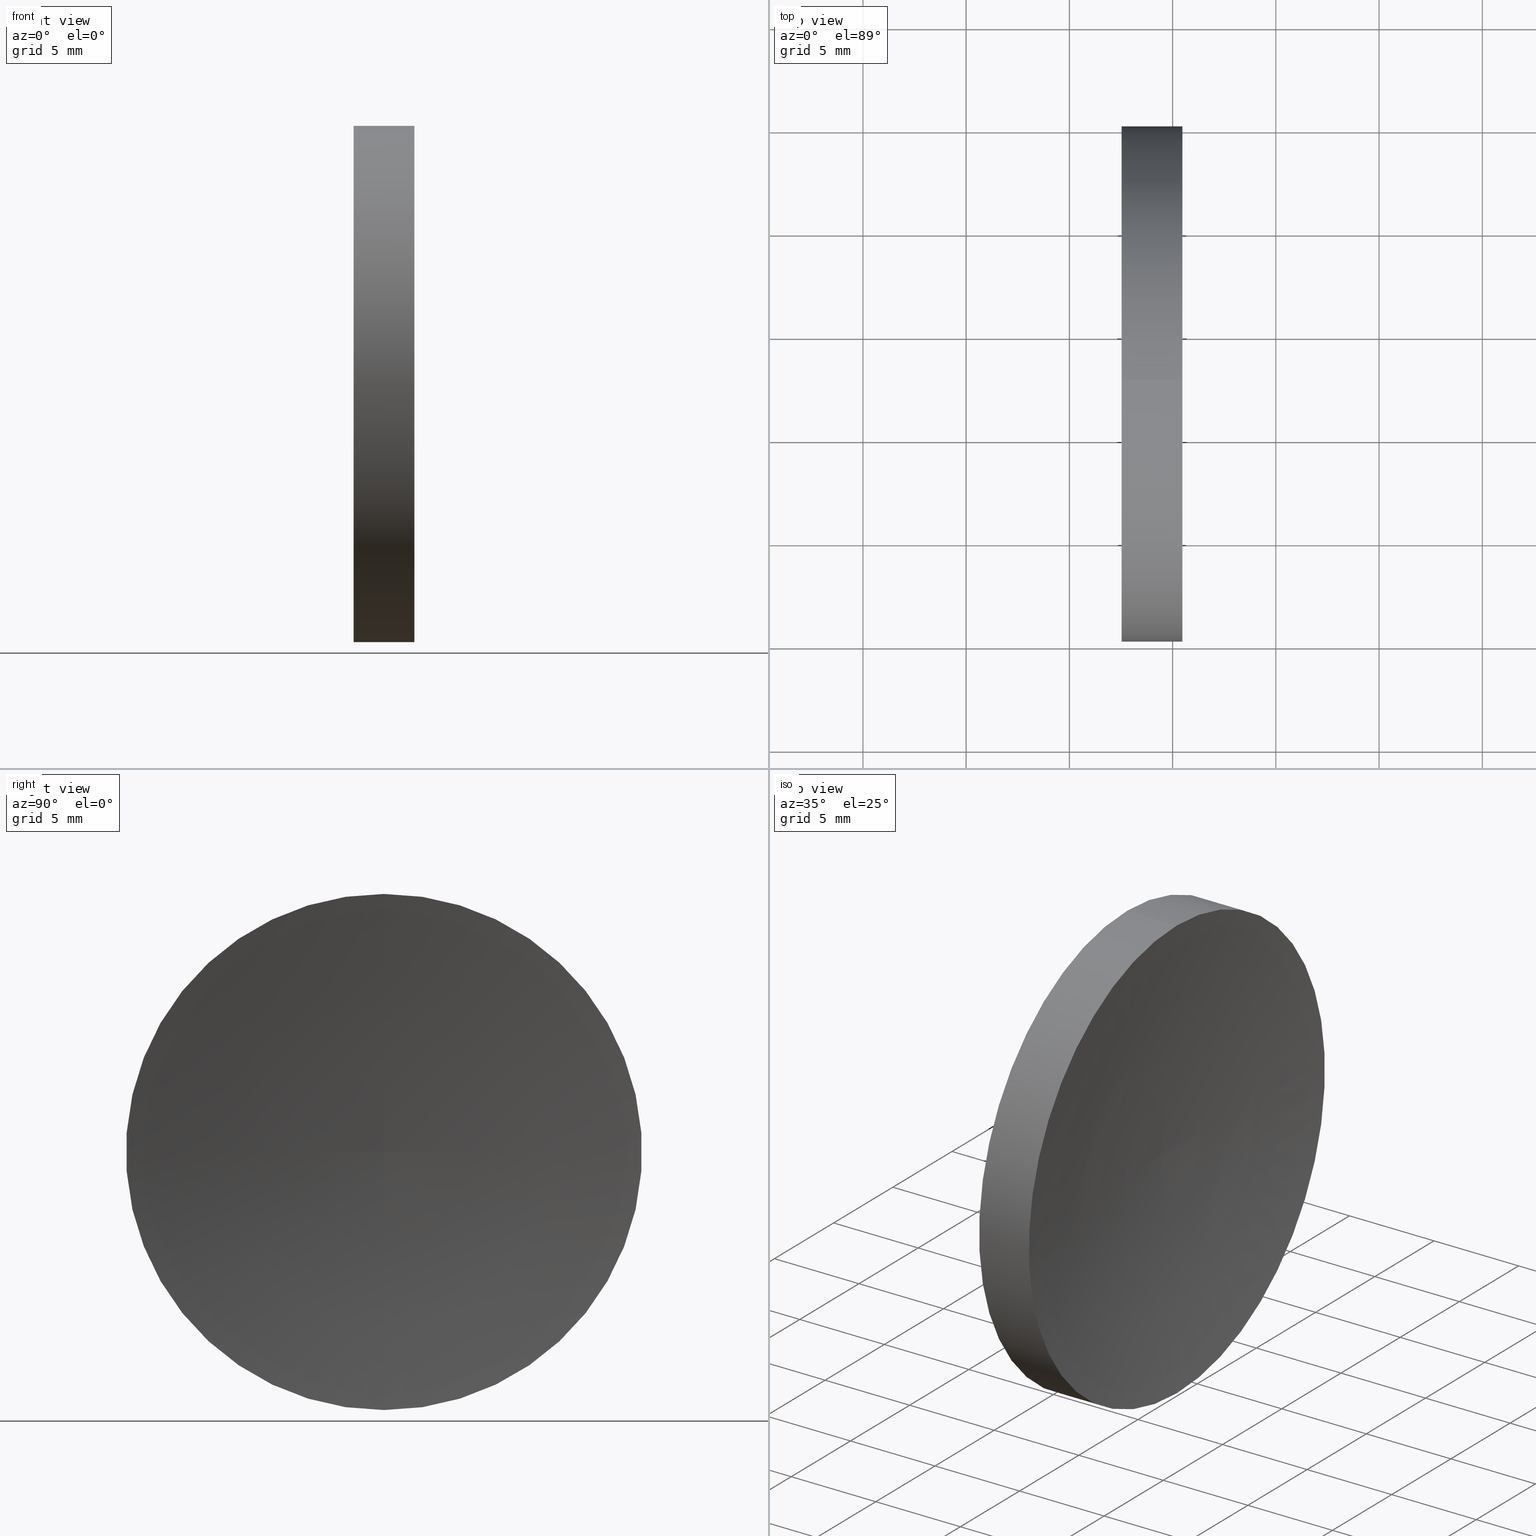
[diagram: canonical four-view strip — front | top / right | iso, engineering-drawing reading convention]
A machine part, canonical four-view strip (front | top / right | iso — engineering-drawing reading convention). The complete STEP part file that produces these views, byte-faithful:
ISO-10303-21;
HEADER;
FILE_DESCRIPTION (( 'STEP AP214' ),
    '1' );
FILE_NAME ('120037.STEP',
    '2019-06-17T05:37:55',
    ( '' ),
    ( '' ),
    'SwSTEP 2.0',
    'SolidWorks 2016',
    '' );
FILE_SCHEMA (( 'AUTOMOTIVE_DESIGN' ));
ENDSEC;

DATA;
#1 = DIRECTION ( 'NONE',  ( 0.0000000000000000000, 0.0000000000000000000, -1.000000000000000000 ) ) ;
#2 = CIRCLE ( 'NONE', #104, 12.49999999999999600 ) ;
#3 = SURFACE_STYLE_USAGE ( .BOTH. , #54 ) ;
#4 = PRESENTATION_STYLE_ASSIGNMENT (( #35 ) ) ;
#5 = FACE_OUTER_BOUND ( 'NONE', #84, .T. ) ;
#6 = EDGE_CURVE ( 'NONE', #46, #90, #107, .T. ) ;
#7 = DIRECTION ( 'NONE',  ( -1.000000000000000000, -0.0000000000000000000, -0.0000000000000000000 ) ) ;
#8 = CARTESIAN_POINT ( 'NONE',  ( 142.1522996457801800, 32.61076812922678400, 0.0000000000000000000 ) ) ;
#9 = DIRECTION ( 'NONE',  ( -1.000000000000000000, -0.0000000000000000000, -0.0000000000000000000 ) ) ;
#10 = ORIENTED_EDGE ( 'NONE', *, *, #64, .T. ) ;
#11 = ADVANCED_BREP_SHAPE_REPRESENTATION ( '120037', ( #57, #151 ), #144 ) ;
#12 = DIRECTION ( 'NONE',  ( 0.0000000000000000000, 0.0000000000000000000, 1.000000000000000000 ) ) ;
#13 = CARTESIAN_POINT ( 'NONE',  ( 0.0000000000000000000, 0.0000000000000000000, 0.0000000000000000000 ) ) ;
#14 = PRODUCT_DEFINITION_SHAPE ( 'NONE', 'NONE',  #39 ) ;
#15 =( NAMED_UNIT ( * ) SI_UNIT ( $, .STERADIAN. ) SOLID_ANGLE_UNIT ( ) );
#16 = DIRECTION ( 'NONE',  ( -1.000000000000000000, -0.0000000000000000000, -0.0000000000000000000 ) ) ;
#17 = EDGE_LOOP ( 'NONE', ( #71, #150, #112 ) ) ;
#18 = LINE ( 'NONE', #137, #149 ) ;
#19 = ORIENTED_EDGE ( 'NONE', *, *, #51, .T. ) ;
#20 = ADVANCED_FACE ( 'NONE', ( #5 ), #139, .F. ) ;
#21 = DIRECTION ( 'NONE',  ( 0.0000000000000000000, 0.0000000000000000000, 1.000000000000000000 ) ) ;
#22 = DIRECTION ( 'NONE',  ( -1.000000000000000000, -0.0000000000000000000, -0.0000000000000000000 ) ) ;
#23 = ORIENTED_EDGE ( 'NONE', *, *, #6, .F. ) ;
#24 =( GEOMETRIC_REPRESENTATION_CONTEXT ( 3 ) GLOBAL_UNCERTAINTY_ASSIGNED_CONTEXT ( ( #37 ) ) GLOBAL_UNIT_ASSIGNED_CONTEXT ( ( #143, #105, #15 ) ) REPRESENTATION_CONTEXT ( 'NONE', 'WORKASPACE' ) );
#25 = DIRECTION ( 'NONE',  ( -1.000000000000000000, -0.0000000000000000000, -0.0000000000000000000 ) ) ;
#26 = CARTESIAN_POINT ( 'NONE',  ( 56.10091507999716500, 32.61076812922678400, 0.0000000000000000000 ) ) ;
#27 = CLOSED_SHELL ( 'NONE', ( #152, #135, #20, #81, #30 ) ) ;
#28 = DIRECTION ( 'NONE',  ( -1.000000000000000000, -0.0000000000000000000, -0.0000000000000000000 ) ) ;
#29 = FACE_OUTER_BOUND ( 'NONE', #53, .T. ) ;
#30 = ADVANCED_FACE ( 'NONE', ( #36 ), #109, .F. ) ;
#31 = EDGE_CURVE ( 'NONE', #46, #163, #2, .T. ) ;
#32 = MECHANICAL_DESIGN_GEOMETRIC_PRESENTATION_REPRESENTATION (  '', ( #156 ), #24 ) ;
#33 = CARTESIAN_POINT ( 'NONE',  ( 56.10091507999716500, 32.61076812922678400, -12.49999999999999600 ) ) ;
#34 = CARTESIAN_POINT ( 'NONE',  ( 142.1522996457801800, 32.61076812922678400, -0.07861990398175949800 ) ) ;
#35 = SURFACE_STYLE_USAGE ( .BOTH. , #91 ) ;
#36 = FACE_OUTER_BOUND ( 'NONE', #145, .T. ) ;
#37 = UNCERTAINTY_MEASURE_WITH_UNIT (LENGTH_MEASURE( 1.000000000000000100E-005 ), #143, 'distance_accuracy_value', 'NONE');
#38 = CARTESIAN_POINT ( 'NONE',  ( 60.47137337464728500, 32.61076812922678400, 0.0000000000000000000 ) ) ;
#39 = PRODUCT_DEFINITION ( 'δ֪', '', #78, #96 ) ;
#40 = DIRECTION ( 'NONE',  ( 0.0000000000000000000, -1.000000000000000000, 0.0000000000000000000 ) ) ;
#41 = AXIS2_PLACEMENT_3D ( 'NONE', #117, #40, #1 ) ;
#42 = CARTESIAN_POINT ( 'NONE',  ( 57.53233705252611700, 32.61076812922678400, -12.49999999999999600 ) ) ;
#43 = APPLICATION_PROTOCOL_DEFINITION ( 'draft international standard', 'automotive_design', 1998, #116 ) ;
#44 = CARTESIAN_POINT ( 'NONE',  ( 57.53233705252611700, 32.61076812922678400, 0.0000000000000000000 ) ) ;
#45 = EDGE_CURVE ( 'NONE', #46, #141, #157, .T. ) ;
#46 = VERTEX_POINT ( 'NONE', #63 ) ;
#47 =( NAMED_UNIT ( * ) PLANE_ANGLE_UNIT ( ) SI_UNIT ( $, .RADIAN. ) );
#48 = CIRCLE ( 'NONE', #132, 12.49999999999999600 ) ;
#49 = DIRECTION ( 'NONE',  ( -0.0000000000000000000, 1.000000000000000000, 1.224646799147353200E-016 ) ) ;
#50 = ORIENTED_EDGE ( 'NONE', *, *, #31, .T. ) ;
#51 = EDGE_CURVE ( 'NONE', #90, #106, #95, .T. ) ;
#52 = CARTESIAN_POINT ( 'NONE',  ( 57.53233705252611700, 32.61076812922678400, 12.49999999999999600 ) ) ;
#53 = EDGE_LOOP ( 'NONE', ( #23, #50, #10, #101 ) ) ;
#54 = SURFACE_SIDE_STYLE ('',( #103 ) ) ;
#55 = CARTESIAN_POINT ( 'NONE',  ( 56.10091507999716500, 32.61076812922678400, 0.0000000000000000000 ) ) ;
#56 =( NAMED_UNIT ( * ) PLANE_ANGLE_UNIT ( ) SI_UNIT ( $, .RADIAN. ) );
#57 = MANIFOLD_SOLID_BREP ( '��ת1', #27 ) ;
#58 = CYLINDRICAL_SURFACE ( 'NONE', #162, 12.49999999999999600 ) ;
#59 = CARTESIAN_POINT ( 'NONE',  ( 57.53233705252611700, 32.61076812922678400, 0.0000000000000000000 ) ) ;
#60 = EDGE_CURVE ( 'NONE', #163, #46, #65, .T. ) ;
#61 = DIRECTION ( 'NONE',  ( -1.000000000000000000, -0.0000000000000000000, -0.0000000000000000000 ) ) ;
#62 = COLOUR_RGB ( '',1.000000000000000000, 1.000000000000000000, 1.000000000000000000 ) ;
#63 = CARTESIAN_POINT ( 'NONE',  ( 60.47137337464727800, 32.61076812922678400, -12.50000000000000400 ) ) ;
#64 = EDGE_CURVE ( 'NONE', #163, #106, #18, .T. ) ;
#65 = CIRCLE ( 'NONE', #134, 12.49999999999999600 ) ;
#66 = CARTESIAN_POINT ( 'NONE',  ( 60.47137337464727800, 32.61076812922678400, 12.50000000000000400 ) ) ;
#67 = AXIS2_PLACEMENT_3D ( 'NONE', #34, #49, #73 ) ;
#68 = CARTESIAN_POINT ( 'NONE',  ( 59.53233705252608800, 32.61076812922678400, 0.0000000000000000000 ) ) ;
#69 = DIRECTION ( 'NONE',  ( 0.0000000000000000000, 0.0000000000000000000, 1.000000000000000000 ) ) ;
#70 = STYLED_ITEM ( 'NONE', ( #4 ), #57 ) ;
#71 = ORIENTED_EDGE ( 'NONE', *, *, #31, .F. ) ;
#72 = EDGE_CURVE ( 'NONE', #163, #141, #164, .T. ) ;
#73 = DIRECTION ( 'NONE',  ( 0.0000000000000000000, -8.398564395917726000E-017, 1.000000000000000000 ) ) ;
#74 =( NAMED_UNIT ( * ) SI_UNIT ( $, .STERADIAN. ) SOLID_ANGLE_UNIT ( ) );
#75 = MECHANICAL_DESIGN_GEOMETRIC_PRESENTATION_REPRESENTATION (  '', ( #70 ), #165 ) ;
#76 = DIRECTION ( 'NONE',  ( -1.000000000000000000, -0.0000000000000000000, -0.0000000000000000000 ) ) ;
#77 = VECTOR ( 'NONE', #7, 1000.000000000000000 ) ;
#78 = PRODUCT_DEFINITION_FORMATION_WITH_SPECIFIED_SOURCE ( '�κ�', '', #119, .NOT_KNOWN. ) ;
#79 = FILL_AREA_STYLE ('',( #166 ) ) ;
#80 = AXIS2_PLACEMENT_3D ( 'NONE', #8, #76, #21 ) ;
#81 = ADVANCED_FACE ( 'NONE', ( #29 ), #133, .T. ) ;
#82 = ORIENTED_EDGE ( 'NONE', *, *, #160, .T. ) ;
#83 = FILL_AREA_STYLE ('',( #125 ) ) ;
#84 = EDGE_LOOP ( 'NONE', ( #108, #158, #88 ) ) ;
#85 = DIRECTION ( 'NONE',  ( -1.000000000000000000, -0.0000000000000000000, -0.0000000000000000000 ) ) ;
#86 = DIRECTION ( 'NONE',  ( 0.0000000000000000000, 0.0000000000000000000, 1.000000000000000000 ) ) ;
#87 =( NAMED_UNIT ( * ) SI_UNIT ( $, .STERADIAN. ) SOLID_ANGLE_UNIT ( ) );
#88 = ORIENTED_EDGE ( 'NONE', *, *, #72, .T. ) ;
#89 = TOROIDAL_SURFACE ( 'NONE', #121, 0.07861990398175949800, 82.62000000000003300 ) ;
#90 = VERTEX_POINT ( 'NONE', #42 ) ;
#91 = SURFACE_SIDE_STYLE ('',( #148 ) ) ;
#92 = FACE_OUTER_BOUND ( 'NONE', #115, .T. ) ;
#93 = PRODUCT_RELATED_PRODUCT_CATEGORY ( 'part', '', ( #119 ) ) ;
#94 = DIRECTION ( 'NONE',  ( 1.000000000000000000, 0.0000000000000000000, 0.0000000000000000000 ) ) ;
#95 = CIRCLE ( 'NONE', #124, 12.49999999999999600 ) ;
#96 = PRODUCT_DEFINITION_CONTEXT ( 'detailed design', #116, 'design' ) ;
#97 = UNCERTAINTY_MEASURE_WITH_UNIT (LENGTH_MEASURE( 1.000000000000000100E-005 ), #159, 'distance_accuracy_value', 'NONE');
#98 = COLOUR_RGB ( '',1.000000000000000000, 1.000000000000000000, 1.000000000000000000 ) ;
#99 = AXIS2_PLACEMENT_3D ( 'NONE', #55, #28, #146 ) ;
#100 = DIRECTION ( 'NONE',  ( 1.000000000000000000, 0.0000000000000000000, 0.0000000000000000000 ) ) ;
#101 = ORIENTED_EDGE ( 'NONE', *, *, #51, .F. ) ;
#102 = APPLICATION_CONTEXT ( 'automotive_design' ) ;
#103 = SURFACE_STYLE_FILL_AREA ( #79 ) ;
#104 = AXIS2_PLACEMENT_3D ( 'NONE', #138, #61, #153 ) ;
#105 =( NAMED_UNIT ( * ) PLANE_ANGLE_UNIT ( ) SI_UNIT ( $, .RADIAN. ) );
#106 = VERTEX_POINT ( 'NONE', #52 ) ;
#107 = LINE ( 'NONE', #33, #77 ) ;
#108 = ORIENTED_EDGE ( 'NONE', *, *, #45, .F. ) ;
#109 = PLANE ( 'NONE',  #140 ) ;
#110 = ORIENTED_EDGE ( 'NONE', *, *, #160, .F. ) ;
#111 = PRESENTATION_LAYER_ASSIGNMENT (  '', '', ( #70 ) ) ;
#112 = ORIENTED_EDGE ( 'NONE', *, *, #72, .F. ) ;
#113 = DIRECTION ( 'NONE',  ( 0.0000000000000000000, 0.0000000000000000000, 1.000000000000000000 ) ) ;
#114 = PRODUCT_CONTEXT ( 'NONE', #102, 'mechanical' ) ;
#115 = EDGE_LOOP ( 'NONE', ( #129, #118, #110, #120 ) ) ;
#116 = APPLICATION_CONTEXT ( 'automotive_design' ) ;
#117 = CARTESIAN_POINT ( 'NONE',  ( 142.1522996457801800, 32.61076812922678400, 0.07861990398175949800 ) ) ;
#118 = ORIENTED_EDGE ( 'NONE', *, *, #6, .T. ) ;
#119 = PRODUCT ( '120037', '120037', '', ( #114 ) ) ;
#120 = ORIENTED_EDGE ( 'NONE', *, *, #64, .F. ) ;
#121 = AXIS2_PLACEMENT_3D ( 'NONE', #161, #16, #131 ) ;
#122 =( LENGTH_UNIT ( ) NAMED_UNIT ( * ) SI_UNIT ( .MILLI., .METRE. ) );
#123 = DIRECTION ( 'NONE',  ( 0.0000000000000000000, 0.0000000000000000000, 1.000000000000000000 ) ) ;
#124 = AXIS2_PLACEMENT_3D ( 'NONE', #154, #22, #123 ) ;
#125 = FILL_AREA_STYLE_COLOUR ( '', #62 ) ;
#126 = PRESENTATION_STYLE_ASSIGNMENT (( #3 ) ) ;
#127 = PRESENTATION_LAYER_ASSIGNMENT (  '', '', ( #156 ) ) ;
#128 = APPLICATION_PROTOCOL_DEFINITION ( 'draft international standard', 'automotive_design', 1998, #102 ) ;
#129 = ORIENTED_EDGE ( 'NONE', *, *, #60, .T. ) ;
#130 = UNCERTAINTY_MEASURE_WITH_UNIT (LENGTH_MEASURE( 1.000000000000000100E-005 ), #122, 'distance_accuracy_value', 'NONE');
#131 = DIRECTION ( 'NONE',  ( 0.0000000000000000000, 0.0000000000000000000, 1.000000000000000000 ) ) ;
#132 = AXIS2_PLACEMENT_3D ( 'NONE', #44, #85, #12 ) ;
#133 = CYLINDRICAL_SURFACE ( 'NONE', #99, 12.49999999999999600 ) ;
#134 = AXIS2_PLACEMENT_3D ( 'NONE', #38, #25, #113 ) ;
#135 = ADVANCED_FACE ( 'NONE', ( #155 ), #89, .F. ) ;
#136 = DIRECTION ( 'NONE',  ( 0.0000000000000000000, 0.0000000000000000000, -1.000000000000000000 ) ) ;
#137 = CARTESIAN_POINT ( 'NONE',  ( 56.10091507999716500, 32.61076812922678400, 12.49999999999999600 ) ) ;
#138 = CARTESIAN_POINT ( 'NONE',  ( 60.47137337464728500, 32.61076812922678400, 0.0000000000000000000 ) ) ;
#139 = TOROIDAL_SURFACE ( 'NONE', #80, 0.07861990398175949800, 82.62000000000003300 ) ;
#140 = AXIS2_PLACEMENT_3D ( 'NONE', #59, #94, #136 ) ;
#141 = VERTEX_POINT ( 'NONE', #68 ) ;
#142 = SHAPE_DEFINITION_REPRESENTATION ( #14, #11 ) ;
#143 =( LENGTH_UNIT ( ) NAMED_UNIT ( * ) SI_UNIT ( .MILLI., .METRE. ) );
#144 =( GEOMETRIC_REPRESENTATION_CONTEXT ( 3 ) GLOBAL_UNCERTAINTY_ASSIGNED_CONTEXT ( ( #97 ) ) GLOBAL_UNIT_ASSIGNED_CONTEXT ( ( #159, #56, #87 ) ) REPRESENTATION_CONTEXT ( 'NONE', 'WORKASPACE' ) );
#145 = EDGE_LOOP ( 'NONE', ( #82, #19 ) ) ;
#146 = DIRECTION ( 'NONE',  ( 0.0000000000000000000, 0.0000000000000000000, 1.000000000000000000 ) ) ;
#147 = DIRECTION ( 'NONE',  ( -1.000000000000000000, -0.0000000000000000000, -0.0000000000000000000 ) ) ;
#148 = SURFACE_STYLE_FILL_AREA ( #83 ) ;
#149 = VECTOR ( 'NONE', #9, 1000.000000000000000 ) ;
#150 = ORIENTED_EDGE ( 'NONE', *, *, #45, .T. ) ;
#151 = AXIS2_PLACEMENT_3D ( 'NONE', #13, #86, #100 ) ;
#152 = ADVANCED_FACE ( 'NONE', ( #92 ), #58, .T. ) ;
#153 = DIRECTION ( 'NONE',  ( 0.0000000000000000000, 0.0000000000000000000, 1.000000000000000000 ) ) ;
#154 = CARTESIAN_POINT ( 'NONE',  ( 57.53233705252611700, 32.61076812922678400, 0.0000000000000000000 ) ) ;
#155 = FACE_OUTER_BOUND ( 'NONE', #17, .T. ) ;
#156 = STYLED_ITEM ( 'NONE', ( #126 ), #11 ) ;
#157 = CIRCLE ( 'NONE', #67, 82.62000000000003300 ) ;
#158 = ORIENTED_EDGE ( 'NONE', *, *, #60, .F. ) ;
#159 =( LENGTH_UNIT ( ) NAMED_UNIT ( * ) SI_UNIT ( .MILLI., .METRE. ) );
#160 = EDGE_CURVE ( 'NONE', #106, #90, #48, .T. ) ;
#161 = CARTESIAN_POINT ( 'NONE',  ( 142.1522996457801800, 32.61076812922678400, 0.0000000000000000000 ) ) ;
#162 = AXIS2_PLACEMENT_3D ( 'NONE', #26, #147, #69 ) ;
#163 = VERTEX_POINT ( 'NONE', #66 ) ;
#164 = CIRCLE ( 'NONE', #41, 82.62000000000003300 ) ;
#165 =( GEOMETRIC_REPRESENTATION_CONTEXT ( 3 ) GLOBAL_UNCERTAINTY_ASSIGNED_CONTEXT ( ( #130 ) ) GLOBAL_UNIT_ASSIGNED_CONTEXT ( ( #122, #47, #74 ) ) REPRESENTATION_CONTEXT ( 'NONE', 'WORKASPACE' ) );
#166 = FILL_AREA_STYLE_COLOUR ( '', #98 ) ;
ENDSEC;
END-ISO-10303-21;
